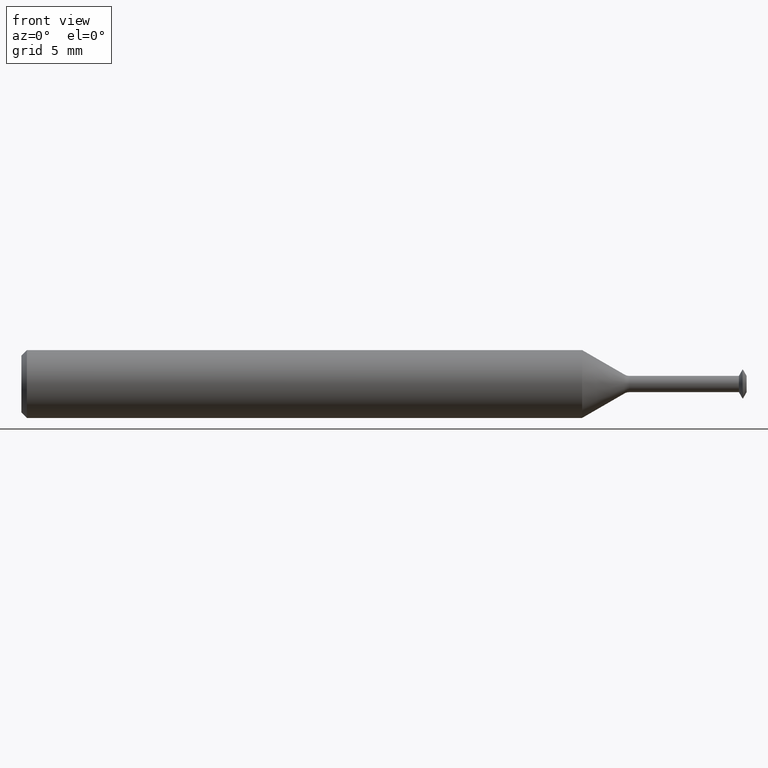
[diagram: clean part render]
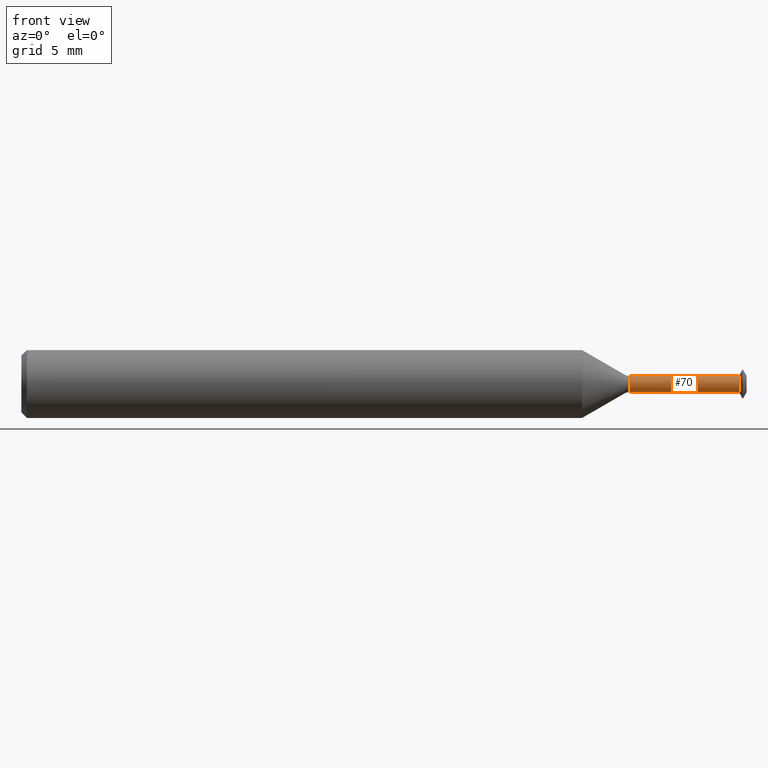
[diagram: same view with one face highlighted and labeled with its STEP entity id]
A machine part, front view. The second image highlights one B-rep face of the part: STEP entity #70.
In plain terms, the highlighted cylindrical surface (edge-blend (fillet) strip) has radius 0.5715 mm, axis along (-1, -0, -0).
Its self-contained STEP definition (entity closure, byte-faithful):
#1 = VECTOR ( 'NONE', #210, 39.37007874015748143 ) ;
#7 = VERTEX_POINT ( 'NONE', #446 ) ;
#21 = VECTOR ( 'NONE', #276, 39.37007874015748143 ) ;
#25 = CARTESIAN_POINT ( 'NONE',  ( 0.0000000000000000000, 0.0000000000000000000, 0.02249999999999965916 ) ) ;
#32 = CYLINDRICAL_SURFACE ( 'NONE', #56, 0.02249999999999965916 ) ;
#35 = CARTESIAN_POINT ( 'NONE',  ( 1.676156094570019572, 0.0000000000000000000, 0.0000000000000000000 ) ) ;
#37 = CARTESIAN_POINT ( 'NONE',  ( 0.0000000000000000000, 0.0000000000000000000, 0.0000000000000000000 ) ) ;
#38 = ORIENTED_EDGE ( 'NONE', *, *, #314, .F. ) ;
#51 = DIRECTION ( 'NONE',  ( 0.0000000000000000000, 0.0000000000000000000, 1.000000000000000000 ) ) ;
#56 = AXIS2_PLACEMENT_3D ( 'NONE', #37, #192, #341 ) ;
#70 = ADVANCED_FACE ( 'NONE', ( #242 ), #32, .T. ) ;
#72 = LINE ( 'NONE', #217, #1 ) ;
#104 = EDGE_CURVE ( 'NONE', #259, #7, #286, .T. ) ;
#115 = EDGE_CURVE ( 'NONE', #353, #164, #383, .T. ) ;
#120 = CARTESIAN_POINT ( 'NONE',  ( 1.978914729518483684, 0.0000000000000000000, 0.0000000000000000000 ) ) ;
#164 = VERTEX_POINT ( 'NONE', #430 ) ;
#165 = EDGE_LOOP ( 'NONE', ( #38, #197, #318, #238 ) ) ;
#192 = DIRECTION ( 'NONE',  ( -1.000000000000000000, -0.0000000000000000000, -0.0000000000000000000 ) ) ;
#197 = ORIENTED_EDGE ( 'NONE', *, *, #104, .T. ) ;
#198 = LINE ( 'NONE', #25, #21 ) ;
#210 = DIRECTION ( 'NONE',  ( -1.000000000000000000, -0.0000000000000000000, -0.0000000000000000000 ) ) ;
#217 = CARTESIAN_POINT ( 'NONE',  ( 0.0000000000000000000, 2.755455298081503178E-18, -0.02249999999999965916 ) ) ;
#238 = ORIENTED_EDGE ( 'NONE', *, *, #115, .F. ) ;
#242 = FACE_OUTER_BOUND ( 'NONE', #165, .T. ) ;
#259 = VERTEX_POINT ( 'NONE', #497 ) ;
#276 = DIRECTION ( 'NONE',  ( -1.000000000000000000, -0.0000000000000000000, -0.0000000000000000000 ) ) ;
#286 = CIRCLE ( 'NONE', #342, 0.02249999999999963141 ) ;
#314 = EDGE_CURVE ( 'NONE', #259, #353, #72, .T. ) ;
#318 = ORIENTED_EDGE ( 'NONE', *, *, #336, .T. ) ;
#336 = EDGE_CURVE ( 'NONE', #7, #164, #198, .T. ) ;
#341 = DIRECTION ( 'NONE',  ( 0.0000000000000000000, 0.0000000000000000000, 1.000000000000000000 ) ) ;
#342 = AXIS2_PLACEMENT_3D ( 'NONE', #120, #474, #51 ) ;
#353 = VERTEX_POINT ( 'NONE', #419 ) ;
#359 = DIRECTION ( 'NONE',  ( -1.000000000000000000, -0.0000000000000000000, -0.0000000000000000000 ) ) ;
#383 = CIRCLE ( 'NONE', #409, 0.02249999999999968345 ) ;
#409 = AXIS2_PLACEMENT_3D ( 'NONE', #35, #359, #436 ) ;
#419 = CARTESIAN_POINT ( 'NONE',  ( 1.676156094570019572, 2.755455298081505874E-18, -0.02249999999999968345 ) ) ;
#430 = CARTESIAN_POINT ( 'NONE',  ( 1.676156094570019572, 0.0000000000000000000, 0.02249999999999968345 ) ) ;
#436 = DIRECTION ( 'NONE',  ( 0.0000000000000000000, 0.0000000000000000000, 1.000000000000000000 ) ) ;
#446 = CARTESIAN_POINT ( 'NONE',  ( 1.978914729518483684, 3.827021247335434091E-18, 0.02249999999999963141 ) ) ;
#474 = DIRECTION ( 'NONE',  ( -1.000000000000000000, -0.0000000000000000000, -0.0000000000000000000 ) ) ;
#497 = CARTESIAN_POINT ( 'NONE',  ( 1.978914729518483684, 0.0000000000000000000, -0.02249999999999963141 ) ) ;